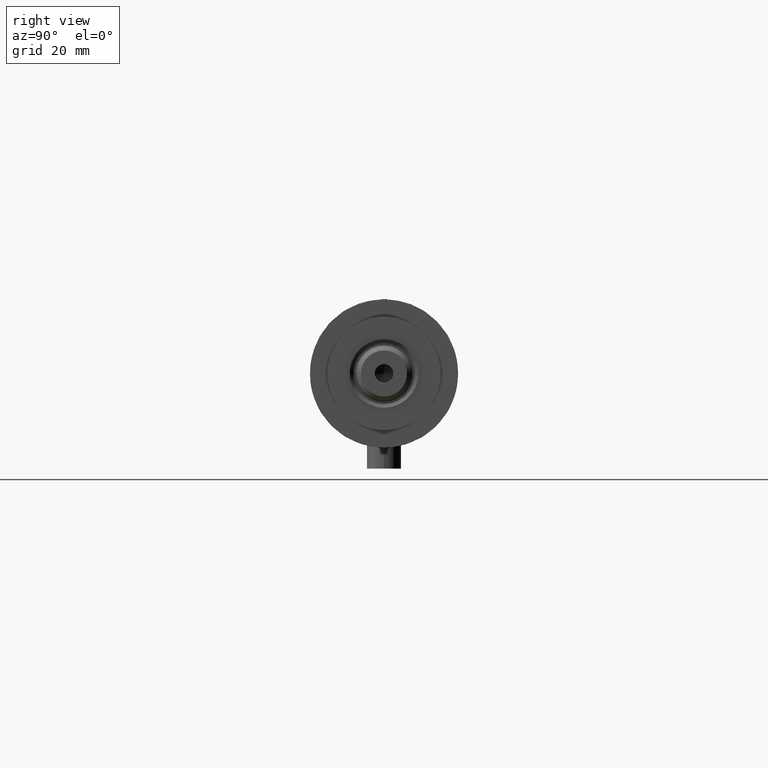
[diagram: clean part render]
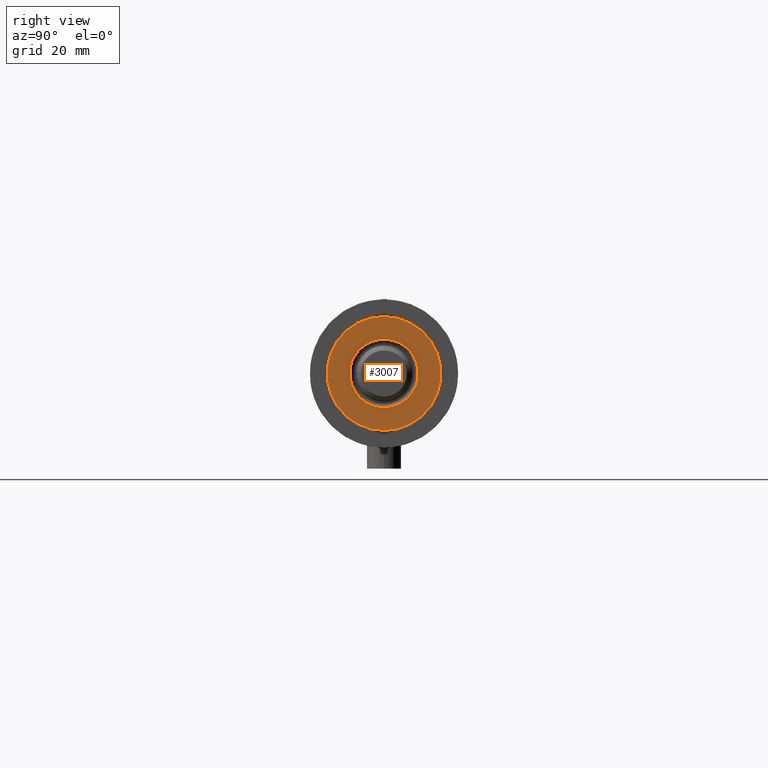
[diagram: same view with one face highlighted and labeled with its STEP entity id]
A machine part, right view. The second image highlights one B-rep face of the part: STEP entity #3007.
In plain terms, the highlighted planar face has unit normal (1, 0, -0).
Its self-contained STEP definition (entity closure, byte-faithful):
#20 = EDGE_CURVE ( 'NONE', #2828, #3826, #3669, .T. ) ;
#104 = CIRCLE ( 'NONE', #3606, 12.05000000000000426 ) ;
#142 = VERTEX_POINT ( 'NONE', #4853 ) ;
#184 = AXIS2_PLACEMENT_3D ( 'NONE', #3965, #2706, #372 ) ;
#278 = ORIENTED_EDGE ( 'NONE', *, *, #4523, .T. ) ;
#315 = DIRECTION ( 'NONE',  ( 0.000000000000000000, 0.000000000000000000, 1.000000000000000000 ) ) ;
#372 = DIRECTION ( 'NONE',  ( 1.000000000000000000, 0.000000000000000000, -0.000000000000000000 ) ) ;
#379 = ORIENTED_EDGE ( 'NONE', *, *, #508, .T. ) ;
#508 = EDGE_CURVE ( 'NONE', #3826, #2828, #3759, .T. ) ;
#714 = DIRECTION ( 'NONE',  ( 0.000000000000000000, 0.000000000000000000, 1.000000000000000000 ) ) ;
#812 = CARTESIAN_POINT ( 'NONE',  ( 0.000000000000000000, 0.000000000000000000, 33.50000000000000000 ) ) ;
#824 = CARTESIAN_POINT ( 'NONE',  ( -19.99999999999999645, 0.000000000000000000, 33.50000000000000000 ) ) ;
#1107 = PLANE ( 'NONE',  #184 ) ;
#1134 = AXIS2_PLACEMENT_3D ( 'NONE', #3718, #2910, #1439 ) ;
#1439 = DIRECTION ( 'NONE',  ( 1.000000000000000000, 0.000000000000000000, 0.000000000000000000 ) ) ;
#2007 = DIRECTION ( 'NONE',  ( 1.000000000000000000, 0.000000000000000000, 0.000000000000000000 ) ) ;
#2011 = CARTESIAN_POINT ( 'NONE',  ( -12.05000000000000426, 1.475699392972560823E-15, 33.50000000000000000 ) ) ;
#2308 = CIRCLE ( 'NONE', #1134, 12.05000000000000426 ) ;
#2333 = VERTEX_POINT ( 'NONE', #2011 ) ;
#2337 = DIRECTION ( 'NONE',  ( 1.000000000000000000, 0.000000000000000000, 0.000000000000000000 ) ) ;
#2360 = FACE_BOUND ( 'NONE', #4816, .T. ) ;
#2408 = DIRECTION ( 'NONE',  ( -0.000000000000000000, -0.000000000000000000, -1.000000000000000000 ) ) ;
#2590 = DIRECTION ( 'NONE',  ( 1.000000000000000000, 0.000000000000000000, 0.000000000000000000 ) ) ;
#2706 = DIRECTION ( 'NONE',  ( 0.000000000000000000, 0.000000000000000000, 1.000000000000000000 ) ) ;
#2828 = VERTEX_POINT ( 'NONE', #824 ) ;
#2910 = DIRECTION ( 'NONE',  ( -0.000000000000000000, -0.000000000000000000, -1.000000000000000000 ) ) ;
#3007 = ADVANCED_FACE ( 'NONE', ( #2360, #4715 ), #1107, .T. ) ;
#3159 = EDGE_CURVE ( 'NONE', #2333, #142, #104, .T. ) ;
#3426 = CARTESIAN_POINT ( 'NONE',  ( 19.99999999999999645, 2.449293598294706119E-15, 33.50000000000000000 ) ) ;
#3606 = AXIS2_PLACEMENT_3D ( 'NONE', #812, #2408, #2590 ) ;
#3650 = ORIENTED_EDGE ( 'NONE', *, *, #3159, .T. ) ;
#3669 = CIRCLE ( 'NONE', #4939, 19.99999999999999645 ) ;
#3718 = CARTESIAN_POINT ( 'NONE',  ( 0.000000000000000000, 0.000000000000000000, 33.50000000000000000 ) ) ;
#3759 = CIRCLE ( 'NONE', #4947, 19.99999999999999645 ) ;
#3826 = VERTEX_POINT ( 'NONE', #3426 ) ;
#3944 = CARTESIAN_POINT ( 'NONE',  ( 0.000000000000000000, 0.000000000000000000, 33.50000000000000000 ) ) ;
#3965 = CARTESIAN_POINT ( 'NONE',  ( 0.000000000000000000, 0.000000000000000000, 33.50000000000000000 ) ) ;
#4004 = CARTESIAN_POINT ( 'NONE',  ( 0.000000000000000000, 0.000000000000000000, 33.50000000000000000 ) ) ;
#4495 = ORIENTED_EDGE ( 'NONE', *, *, #20, .T. ) ;
#4523 = EDGE_CURVE ( 'NONE', #142, #2333, #2308, .T. ) ;
#4715 = FACE_OUTER_BOUND ( 'NONE', #4897, .T. ) ;
#4816 = EDGE_LOOP ( 'NONE', ( #278, #3650 ) ) ;
#4853 = CARTESIAN_POINT ( 'NONE',  ( 12.05000000000000426, 0.000000000000000000, 33.50000000000000000 ) ) ;
#4897 = EDGE_LOOP ( 'NONE', ( #4495, #379 ) ) ;
#4939 = AXIS2_PLACEMENT_3D ( 'NONE', #4004, #315, #2007 ) ;
#4947 = AXIS2_PLACEMENT_3D ( 'NONE', #3944, #714, #2337 ) ;